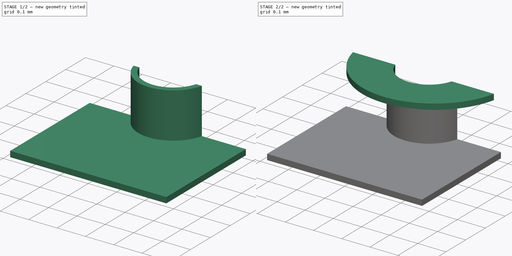
[diagram: build sequence overview — one tinted view per stage of 2, left to right]
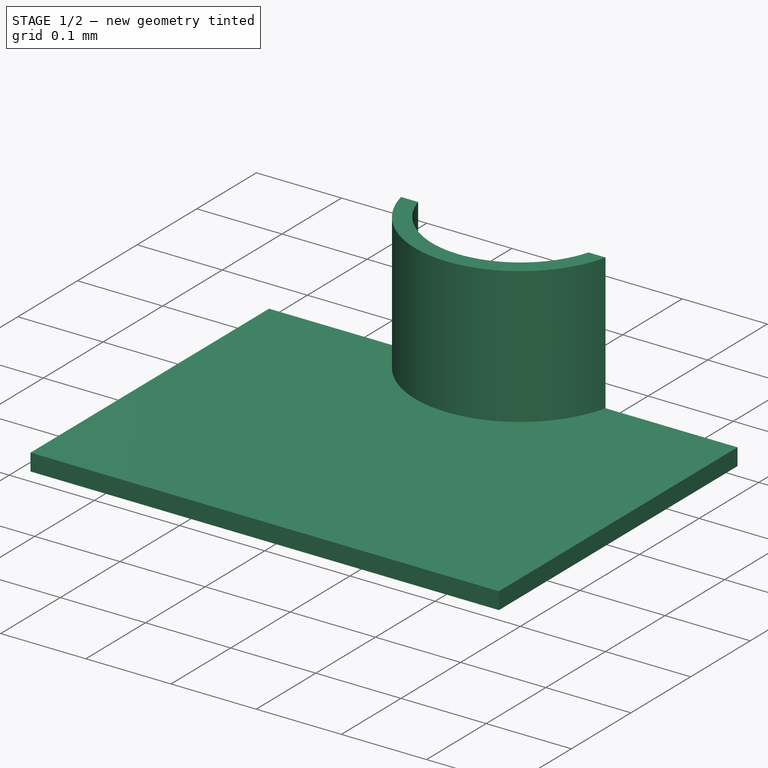
[diagram: stage 1 of 2 — iso view after this stage's code; geometry added in this stage tinted green]
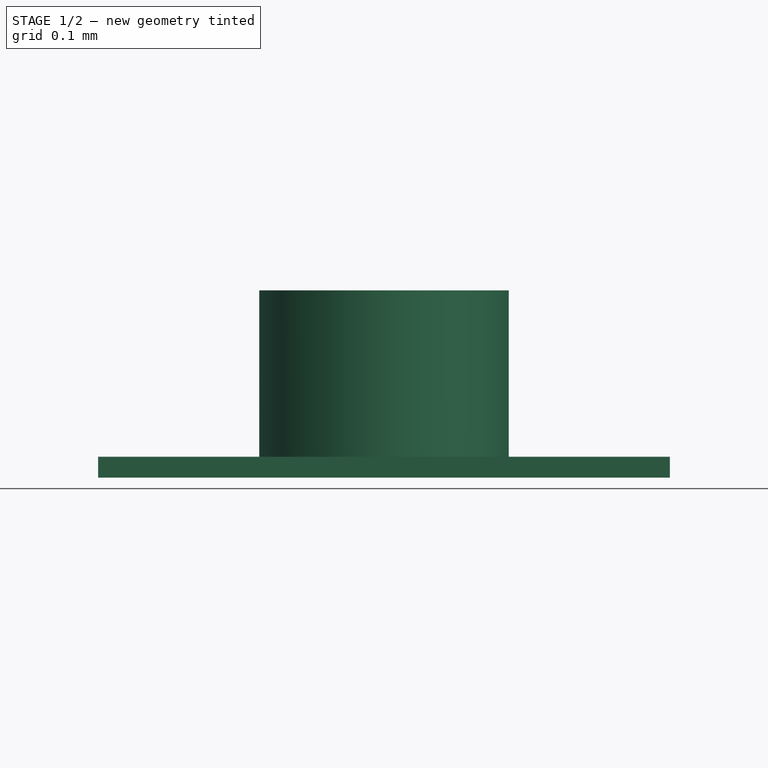
[diagram: stage 1 of 2 — front view after this stage's code; geometry added in this stage tinted green]
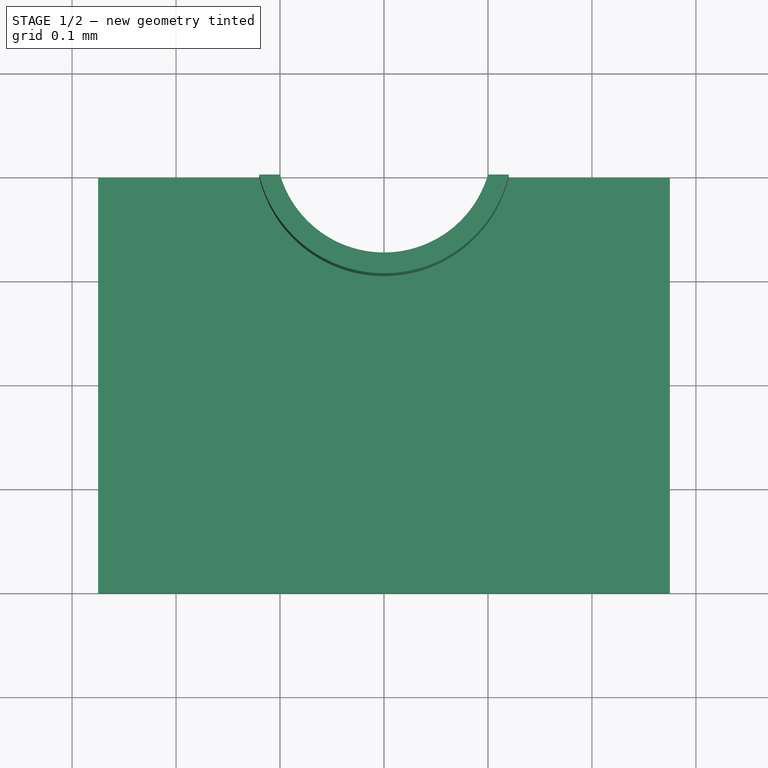
[diagram: stage 1 of 2 — top view after this stage's code; geometry added in this stage tinted green]
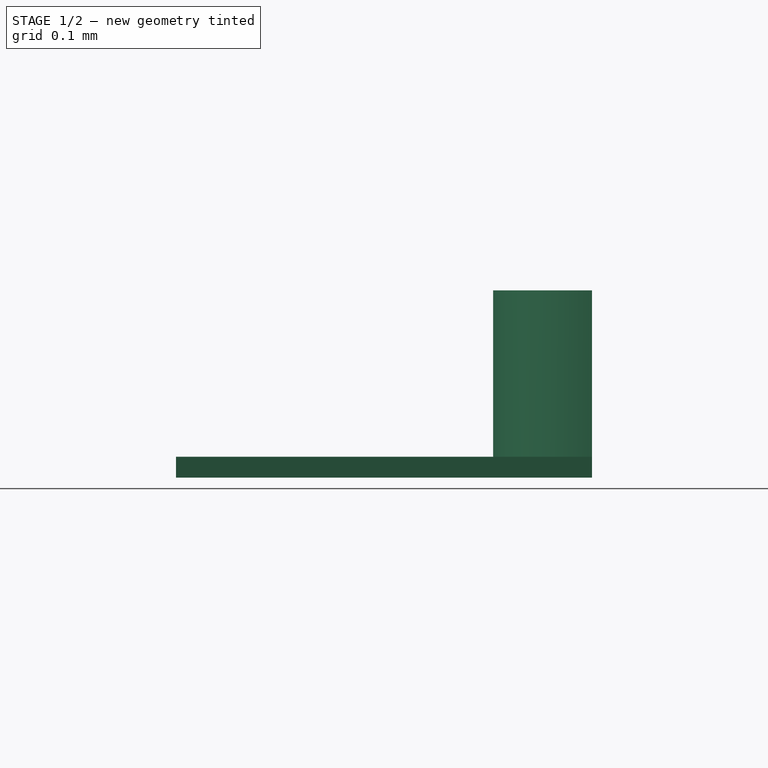
[diagram: stage 1 of 2 — right view after this stage's code; geometry added in this stage tinted green]
FCSTD DOCUMENT  (FreeCAD 0.17R12607 (Git))
Label: 1616 RGB LED Pad
License: CreativeCommons Attribution-ShareAlike
LicenseURL: http://creativecommons.org/licenses/by-sa/4.0/
objects: Sketcher::SketchObject×3, PartDesign::Pad×3, PartDesign::Body×1
note: 10 computed .brp shape members not serialized (recipe doc carries the construction recipe); baked Part::Feature solids carry a one-line shape summary decoded from their .brp

FEATURE [Sketcher::SketchObject] Sketch
  MapMode = 5
  Support = -> [XY_Plane]
  sketch-geometry (7):
    g0: LineSegment StartX=-0.275 StartY=0.2 StartZ=0 EndX=-0.275 EndY=-0.2 EndZ=0
    g1: LineSegment StartX=-0.275 StartY=-0.2 StartZ=0 EndX=0.275 EndY=-0.2 EndZ=0
    g2: LineSegment StartX=0.275 StartY=-0.2 StartZ=0 EndX=0.275 EndY=0.2 EndZ=0
    g3: LineSegment StartX=0.275 StartY=0.2 StartZ=0 EndX=0.1 EndY=0.2 EndZ=0
    g4: LineSegment StartX=-0.275 StartY=0.2 StartZ=0 EndX=-0.1 EndY=0.2 EndZ=0
    g5: ArcOfCircle CenterX=0 CenterY=0.229167 CenterZ=0 NormalX=0 NormalY=0 NormalZ=1 AngleXU=0 Radius=0.104167 StartAngle=3.42539 EndAngle=5.99939
    g6: LineSegment [constr] StartX=0 StartY=0.229167 StartZ=0 EndX=0 EndY=0.125 EndZ=0
  constraints (22):
    c: Vertical(g0)
    c: Coincident(g1,g0)
    c: Horizontal(g1)
    c: Coincident(g2,g1)
    c: Vertical(g2)
    c: Coincident(g3,g2)
    c: Horizontal(g3)
    c: Coincident(g4,g0)
    c: Horizontal(g4)
    c: Coincident(g5,g4)
    c: Coincident(g5,g3)
    c: Equal(g0,g2)
    c: Equal(g3,g4)
    c: DistanceY(g2,g2) = 0.4
    c: Distance(g4,g3) = 0.2
    c: DistanceX(g1,g1) = 0.55
    c: Symmetric(g0,g1,g-2)
    c: Symmetric(g2,g1,g-1)
    c: Coincident(g6,g5)
    c: PointOnObject(g6,g5)
    c: Vertical(g6)
    c: Distance(g6,g3) = 0.075
FEATURE [PartDesign::Pad] Pad
  Length = 0.02
  Length2 = 100
  Profile = -> Sketch
  Type = 0
FEATURE [Sketcher::SketchObject] Sketch001
  ExternalGeometry = -> [Pad]
  MapMode = 5
  Placement = pos=(0,0,0.02) rot=(0,0,1;0rad)
  Support = -> [Pad]
  sketch-geometry (6):
    g0: LineSegment StartX=-0.1 StartY=0.2 StartZ=0 EndX=-0.12 EndY=0.2 EndZ=0
    g1: GeomPoint X=0 Y=0.125 Z=0
    g2: LineSegment [constr] StartX=0 StartY=0.125 StartZ=0 EndX=0 EndY=0.105 EndZ=0
    g3: LineSegment StartX=0.1 StartY=0.2 StartZ=0 EndX=0.12 EndY=0.2 EndZ=0
    g4: ArcOfCircle CenterX=0 CenterY=0.228289 CenterZ=0 NormalX=0 NormalY=0 NormalZ=1 AngleXU=0 Radius=0.123289 StartAngle=3.37311 EndAngle=6.05167
    g5: ArcOfCircle CenterX=0 CenterY=0.229167 CenterZ=0 NormalX=0 NormalY=0 NormalZ=1 AngleXU=0 Radius=0.104167 StartAngle=3.42539 EndAngle=5.99939
  constraints (19):
    c: Coincident(g0,g-3)
    c: Horizontal(g0)
    c: PointOnObject(g1,g-3)
    c: PointOnObject(g1,g-2)
    c: Coincident(g2,g1)
    c: Vertical(g2)
    c: Coincident(g3,g-3)
    c: Horizontal(g3)
    c: Equal(g3,g0)
    c: PointOnObject(g4,g-2)
    c: Coincident(g4,g0)
    c: Coincident(g4,g3)
    c: PointOnObject(g2,g4)
    c: DistanceX(g3,g3) = 0.02
    c: Equal(g3,g2)
    c: PointOnObject(g5,g-2)
    c: Coincident(g5,g0)
    c: Coincident(g5,g3)
    c: PointOnObject(g1,g5)
FEATURE [PartDesign::Pad] Pad001
  BaseFeature = -> Pad
  Length = 0.16
  Length2 = 100
  Profile = -> Sketch001
  Type = 0
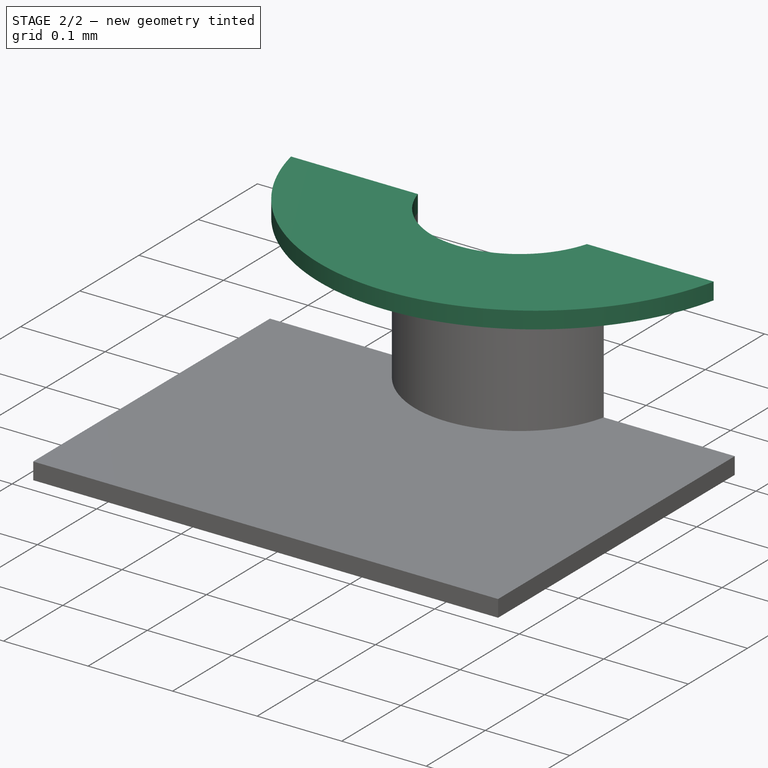
[diagram: stage 2 of 2 — iso view after this stage's code; geometry added in this stage tinted green]
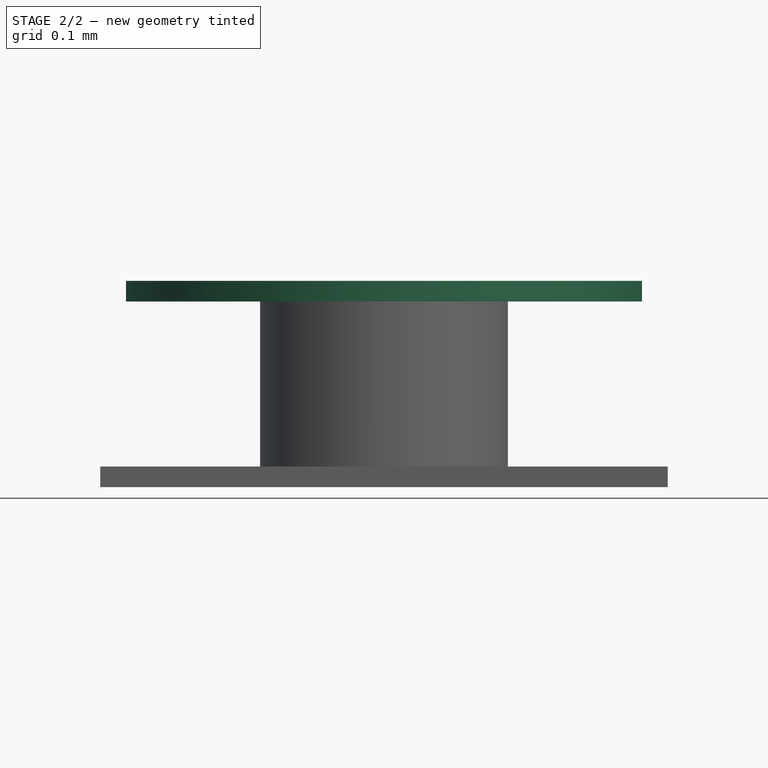
[diagram: stage 2 of 2 — front view after this stage's code; geometry added in this stage tinted green]
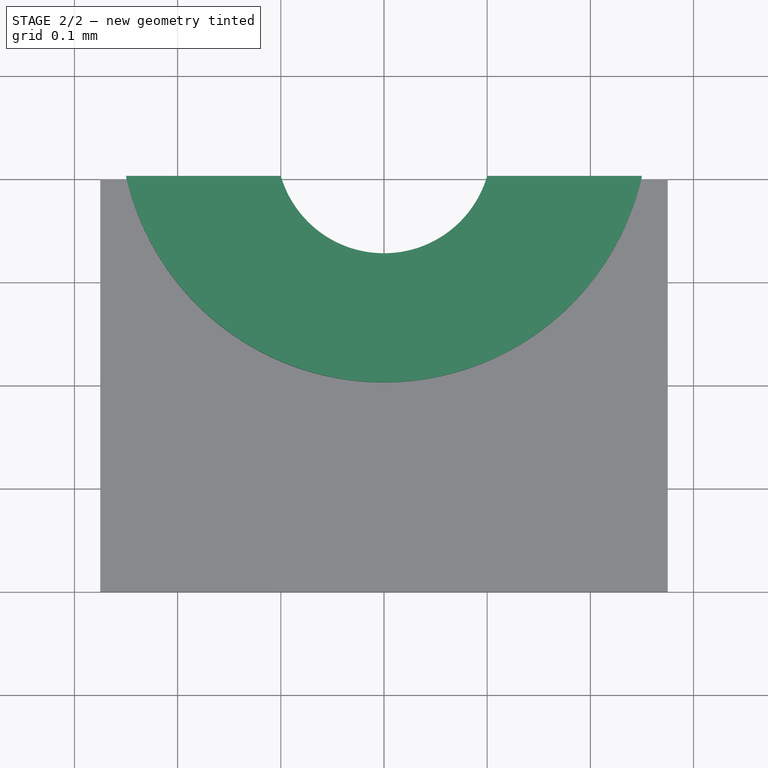
[diagram: stage 2 of 2 — top view after this stage's code; geometry added in this stage tinted green]
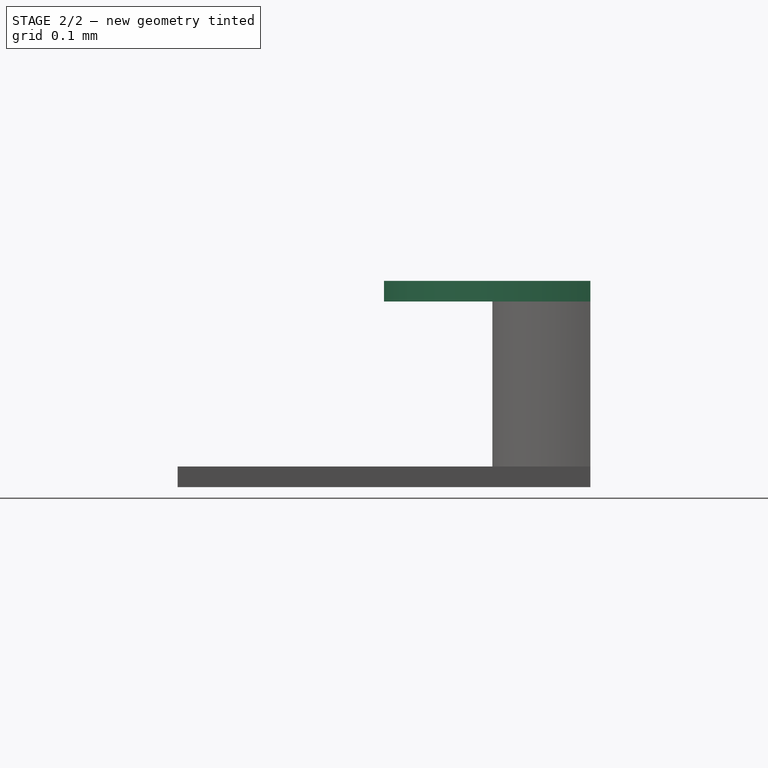
[diagram: stage 2 of 2 — right view after this stage's code; geometry added in this stage tinted green]
FEATURE [Sketcher::SketchObject] Sketch002
  ExternalGeometry = -> [Pad001]
  MapMode = 5
  Placement = pos=(0,0,0.18) rot=(0,0,1;0rad)
  Support = -> [Pad001]
  sketch-geometry (5):
    g0: ArcOfCircle CenterX=0 CenterY=0.229167 CenterZ=0 NormalX=0 NormalY=0 NormalZ=1 AngleXU=0 Radius=0.104167 StartAngle=3.42539 EndAngle=5.99939
    g1: LineSegment StartX=-0.1 StartY=0.2 StartZ=0 EndX=-0.25 EndY=0.2 EndZ=0
    g2: LineSegment StartX=0.1 StartY=0.2 StartZ=0 EndX=0.25 EndY=0.2 EndZ=0
    g3: ArcOfCircle CenterX=0 CenterY=0.25625 CenterZ=0 NormalX=0 NormalY=0 NormalZ=1 AngleXU=0 Radius=0.25625 StartAngle=3.36291 EndAngle=6.06187
    g4: GeomPoint X=0 Y=4.8e-11 Z=0
  constraints (15):
    c: Coincident(g0,g-3)
    c: Coincident(g0,g-3)
    c: Coincident(g0,g-3)
    c: Coincident(g1,g0)
    c: Horizontal(g1)
    c: Coincident(g2,g0)
    c: Horizontal(g2)
    c: Equal(g2,g1)
    c: PointOnObject(g3,g-2)
    c: Coincident(g3,g1)
    c: Coincident(g3,g2)
    c: DistanceX(g1,g2) = 0.5
    c: PointOnObject(g4,g3)
    c: PointOnObject(g4,g-2)
    c: Distance(g4,g2) = 0.2
FEATURE [PartDesign::Pad] Pad002
  BaseFeature = -> Pad001
  Length = 0.02
  Length2 = 100
  Profile = -> Sketch002
  Type = 0
FEATURE [PartDesign::Body] Body
  Group = -> [Sketch,Pad,Sketch001,Pad001,Sketch002,Pad002]
  Origin = -> Origin
  Tip = -> Pad002
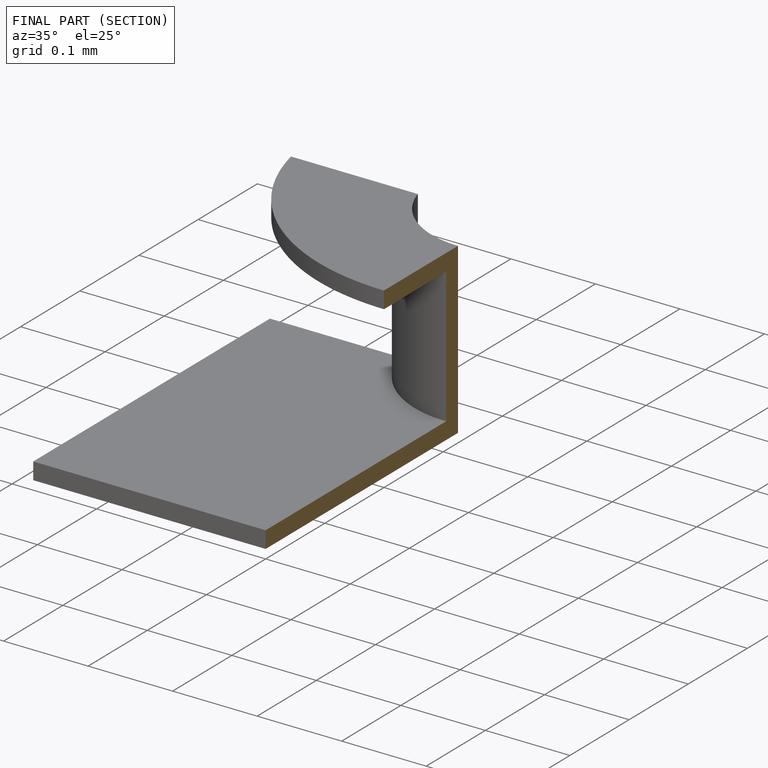
[diagram: finished part — half-section view (interior)]
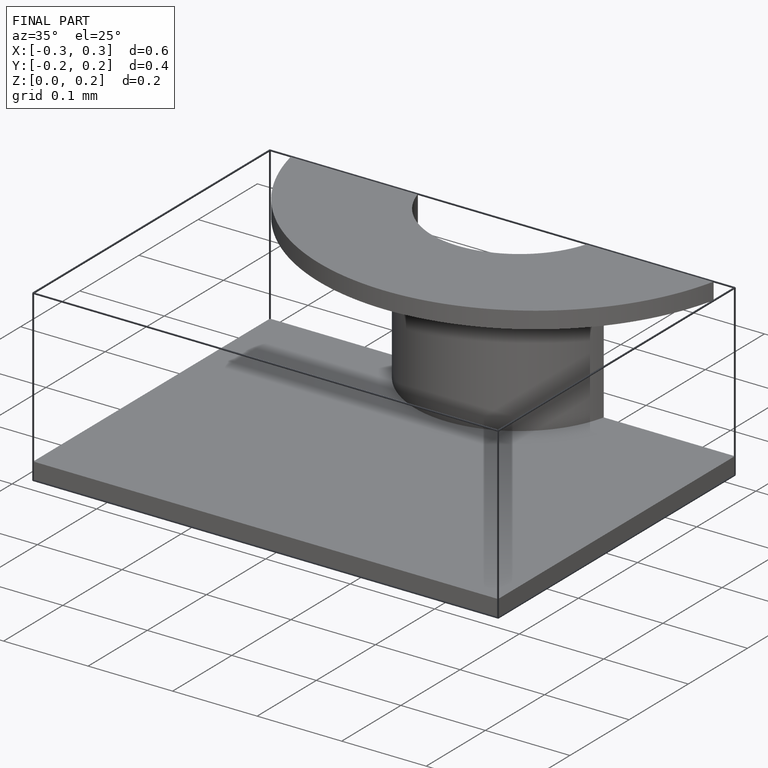
[diagram: finished part — iso view with bounding-box wireframe]
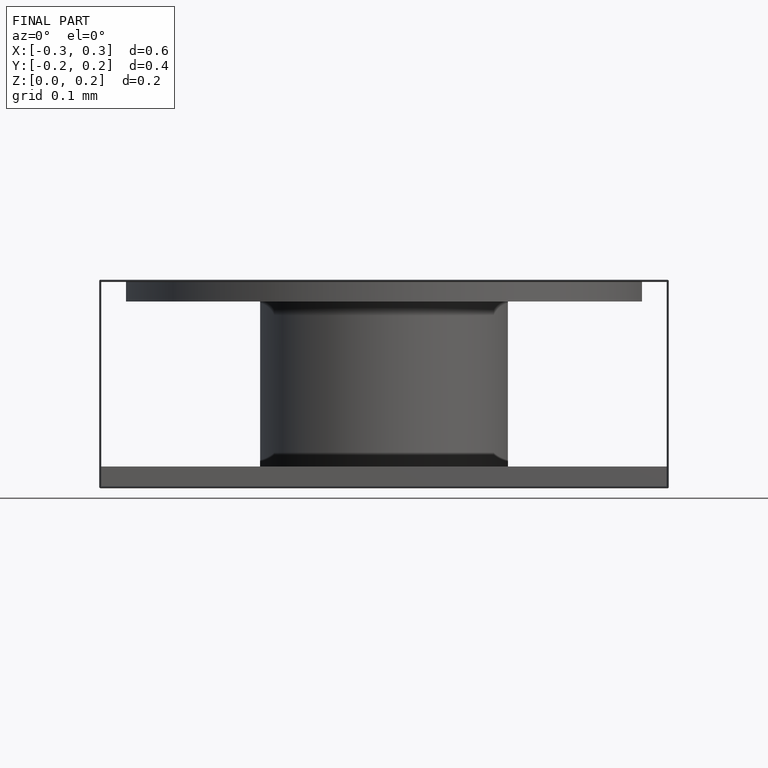
[diagram: finished part — front view with bounding-box wireframe]
